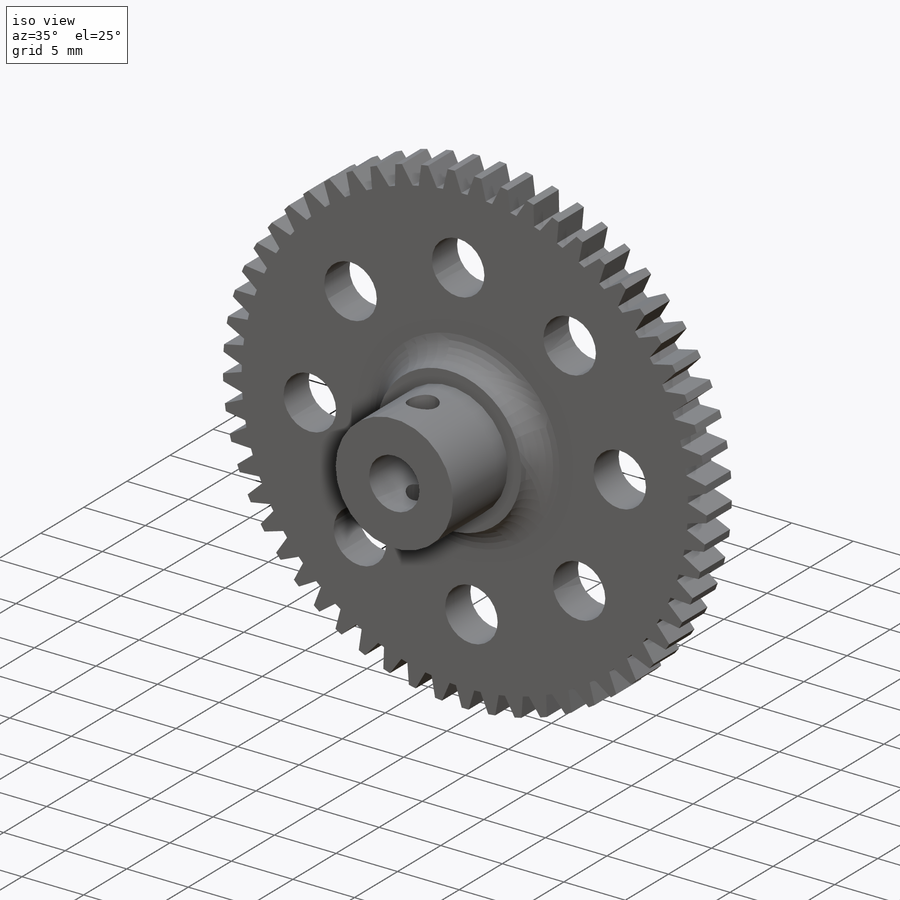
[diagram: iso view]
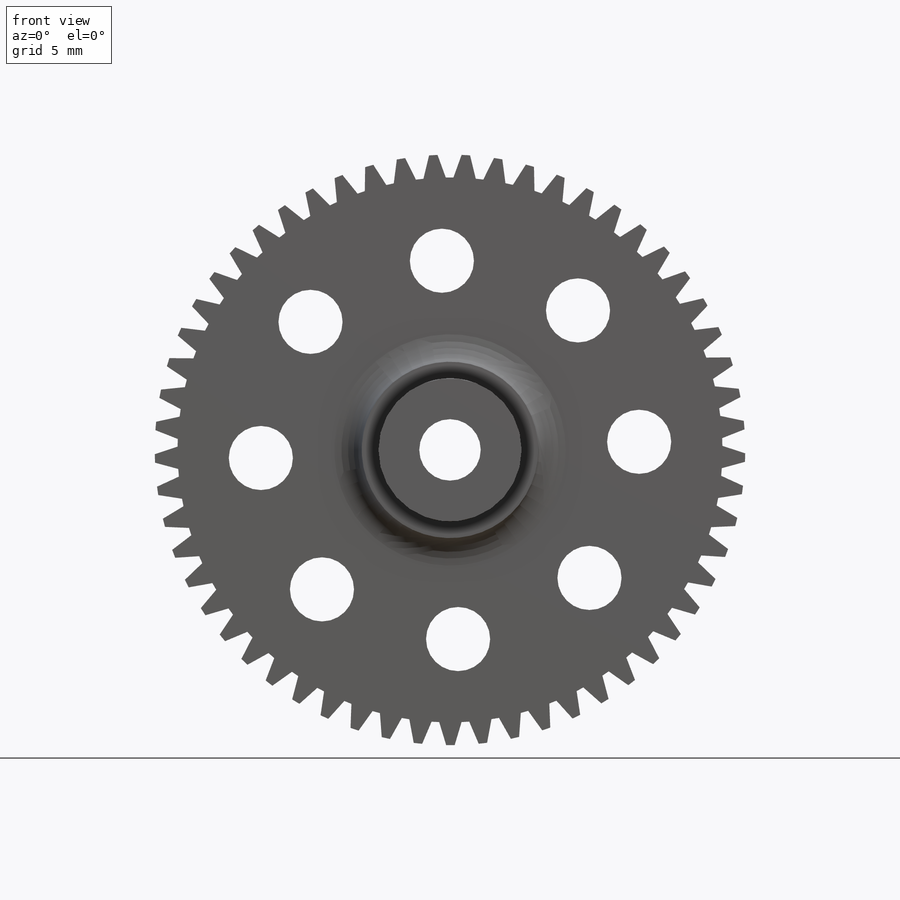
[diagram: front view]
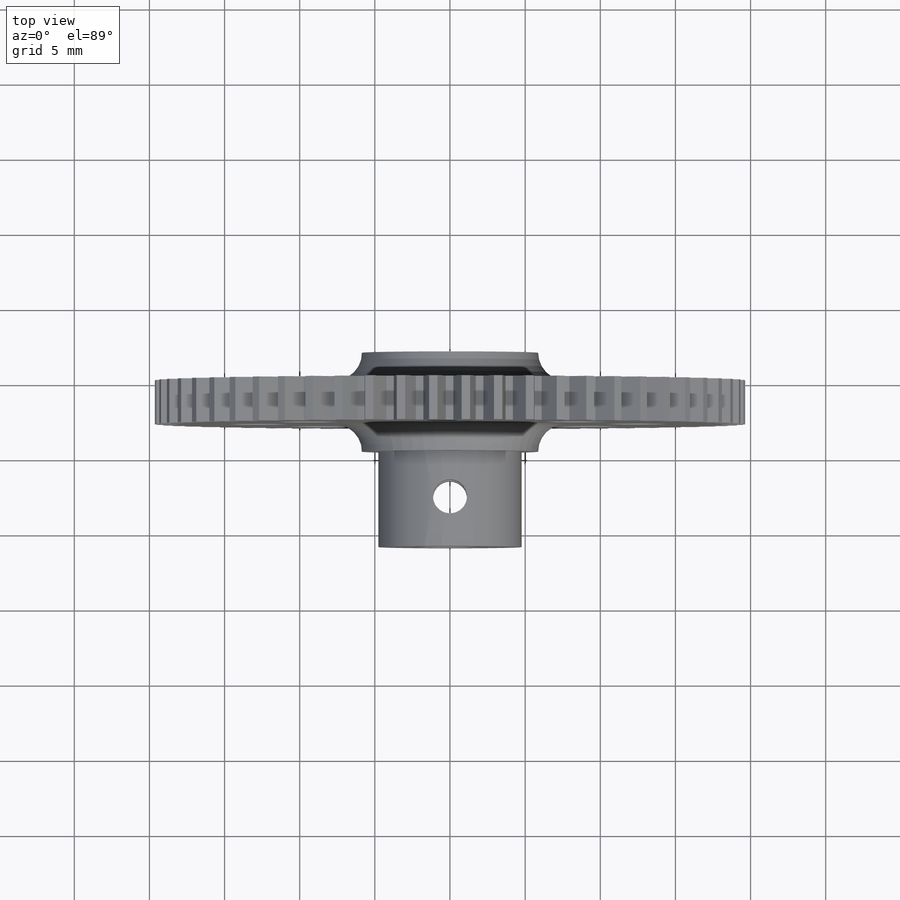
[diagram: top view]
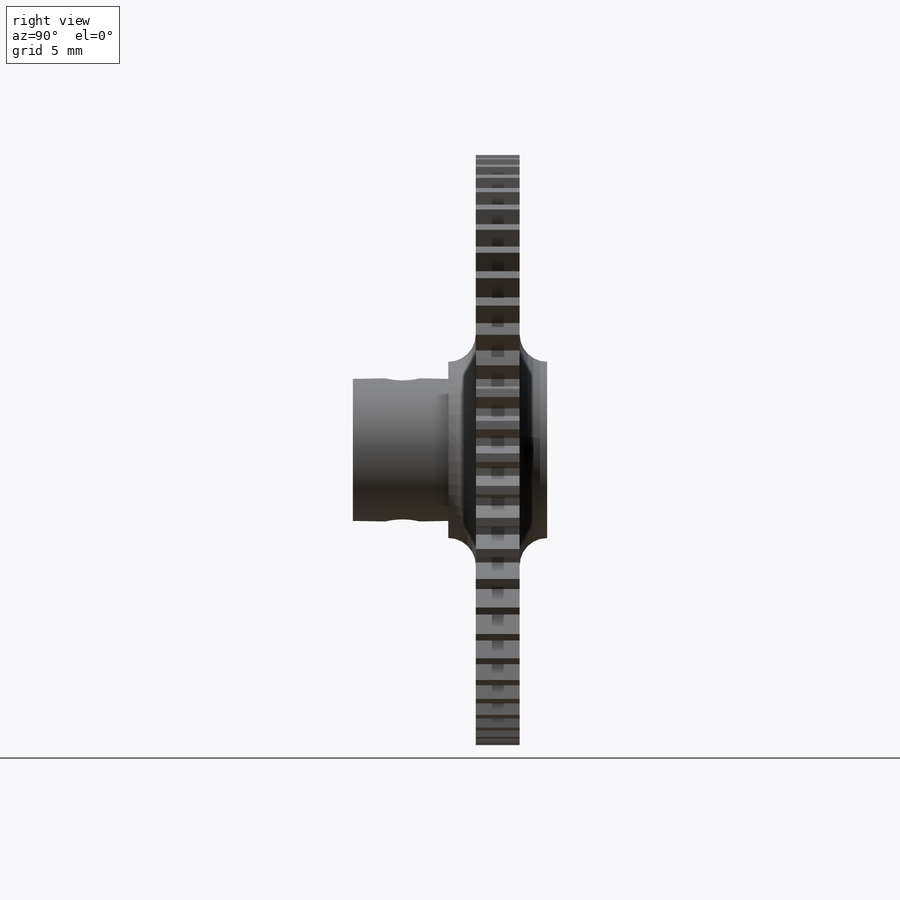
[diagram: right view]
SOLIDWORKS PART (.sldprt)
format: sldprt  version: not decoded by parser v0  size: 660,992 bytes
history: native  units: mm
features: sketch x8, extrude x3, cut_extrude x3, pattern_circular x2, fillet x2, material x1, plane x1, mirror x1, hole x1 (+17 scaffold rows collapsed)
feature tree (39):
  scaffold x17  (default folders/planes/origin — collapsed)
  material  "Material <not specified>"
  sketch  "Sketch1"  dims[D1=39.29mm]
  extrude  "Extrude1"  Depth=2.921mm
  sketch  "Sketch3"  dims[D1=0.254mm D2=0.3175mm D3=1.6002mm D4=1.6002mm D5=0.508mm]
  cut_extrude  "Cut-Extrude1"  [1 undecoded]
  pattern_circular  "CirPattern1"  Count=57 Angle=360deg
  sketch  "Sketch4"  dims[D1=11.7348mm]
  extrude  "Extrude2"  Depth=1.8288mm
  fillet  "Fillet1"  Radius=1.8288mm
  plane  "Plane1"
  sketch  "Sketch5"  dims[D1=7.8232mm]
  mirror  "Mirror3"
  fillet  "Fillet2"  Radius=1.8288mm
  cut_extrude  "Cut-Extrude3"  [1 undecoded]
  sketch  "Sketch7"  dims[c1.D1=4.2672mm c1.D2=4.2672mm c2.D1=4.2672mm c2.D2=12.4968mm c2.D3=12.5984mm]
  cut_extrude  "Cut-Extrude4"  [1 undecoded]
  pattern_circular  "CirPattern2"  Count=8 Angle=45deg
  sketch  "Sketch8"  dims[D1=9.525mm D2=4.09mm]
  extrude  "Boss-Extrude1"  Depth=6.35mm
  hole  "#4-40 Tapped Hole1"  Diameter=2.2606mm Depth=24.4075mm
  sketch  "3DSketch1"  dims[D1=3.302mm]
  sketch  "Sketch11"  dims[hole-wizard template sketch: 60 standard entries collapsed; hole parameters kept: c18.Thru Tap Drill Depth=24.4075mm]
decode coverage: 16 of 20 modeling features carry decoded parameters
note: ~ marks probable driven/reference dimensions
note: 3 parameter values undecoded
summary: no parameter record found for 3 features
note: suppression state not decoded; provenance and decode notes live in map.json
